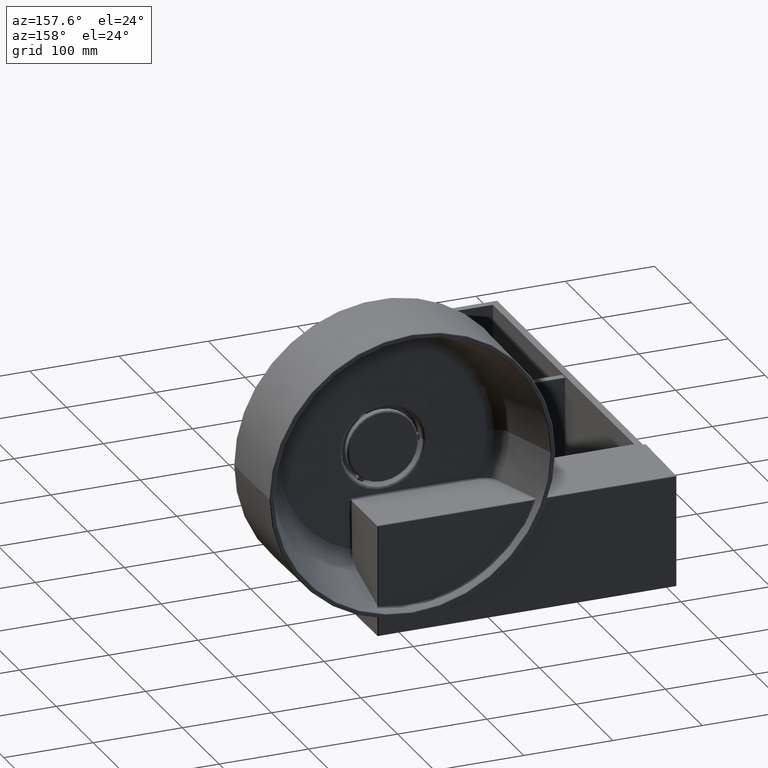
[diagram: clean part render]
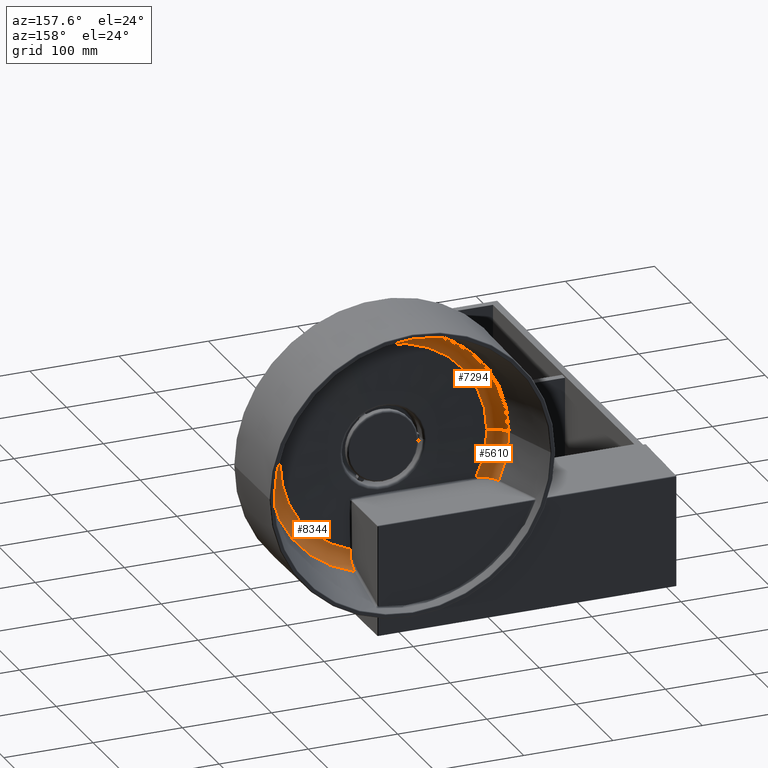
[diagram: same view with one multi-face feature highlighted, each face labeled with its STEP entity id]
A machine part, auxiliary view. The highlighted faces form ONE feature: a constant-radius fillet chain: 3 tangent blend faces with common blend radius 20 mm. The faces share edges in the B-rep.
Their STEP definitions:
[1] entity #5610 (Torus):
#266 = DIRECTION ( 'NONE',  ( 1.000000000000000000, 0.0000000000000000000, 0.0000000000000000000 ) ) ;
#281 = DIRECTION ( 'NONE',  ( -1.214623636765614367E-16, -1.000000000000000000, -0.0000000000000000000 ) ) ;
#293 = CARTESIAN_POINT ( 'NONE',  ( 298.7417837622144816, 415.8180891542289146, 55.99999999999999289 ) ) ;
#357 = CARTESIAN_POINT ( 'NONE',  ( 176.1294541464399401, 427.7524126341719466, 2.763341588403632532 ) ) ;
#409 = CARTESIAN_POINT ( 'NONE',  ( 187.0314929954897991, 417.5608795268813651, 3.222741473056470518 ) ) ;
#655 = B_SPLINE_CURVE_WITH_KNOTS ( 'NONE', 3,
 ( #1245, #4729, #8315, #357, #3880, #7415, #10837, #3019, #6535, #10034, #2163, #5654, #9236, #1297, #4781, #8368, #409, #3934, #7468, #10891, #3075, #6587, #10090, #2213 ),
 .UNSPECIFIED., .F., .F.,
 ( 4, 2, 2, 2, 2, 2, 2, 2, 2, 2, 2, 4 ),
 ( 0.0000000000000000000, 0.001652237577428946431, 0.003304475154857892862, 0.006608950309715825623, 0.009913425464573757950, 0.01156566304200278179, 0.01321790061943180390, 0.01652237577428968679, 0.01817461335171862563, 0.01982685092914756794, 0.02313132608400557746, 0.02643580123886359046 ),
 .UNSPECIFIED. ) ;
#916 = AXIS2_PLACEMENT_3D ( 'NONE', #8040, #8028, #8026 ) ;
#1032 = VERTEX_POINT ( 'NONE', #1972 ) ;
#1185 = EDGE_CURVE ( 'NONE', #5533, #8374, #4333, .T. ) ;
#1245 = CARTESIAN_POINT ( 'NONE',  ( 175.3166020602095898, 429.7999743637435586, 2.720587847853894736 ) ) ;
#1297 = CARTESIAN_POINT ( 'NONE',  ( 184.1085889854343236, 419.0062127903866553, 3.104941030092465581 ) ) ;
#1668 = ORIENTED_EDGE ( 'NONE', *, *, #5983, .F. ) ;
#1972 = CARTESIAN_POINT ( 'NONE',  ( 164.3078920627952755, 429.7999743637435586, 55.99999999999997868 ) ) ;
#2163 = CARTESIAN_POINT ( 'NONE',  ( 181.4581704003579432, 420.9079078304990276, 2.996788958571487971 ) ) ;
#2213 = CARTESIAN_POINT ( 'NONE',  ( 195.5372907242976055, 415.8180891542289146, 3.568252570373131594 ) ) ;
#2825 = ORIENTED_EDGE ( 'NONE', *, *, #10651, .F. ) ;
#3019 = CARTESIAN_POINT ( 'NONE',  ( 179.0907703744756816, 423.1866065122763416, 2.897787510938583111 ) ) ;
#3050 = ORIENTED_EDGE ( 'NONE', *, *, #1185, .T. ) ;
#3075 = CARTESIAN_POINT ( 'NONE',  ( 191.2042643516920180, 416.2688581369131953, 3.391088508899839482 ) ) ;
#3289 = TOROIDAL_SURFACE ( 'NONE', #9756, 115.3595526844546981, 20.00000000000001066 ) ;
#3467 = CIRCLE ( 'NONE', #8305, 20.00000000000001776 ) ;
#3821 = ORIENTED_EDGE ( 'NONE', *, *, #4420, .F. ) ;
#3880 = CARTESIAN_POINT ( 'NONE',  ( 176.3721066186695055, 427.2549202349674715, 2.775231594317320027 ) ) ;
#3934 = CARTESIAN_POINT ( 'NONE',  ( 188.0575009531934825, 417.1657154939548491, 3.264058239781951087 ) ) ;
#4119 = CARTESIAN_POINT ( 'NONE',  ( 175.3166020602095898, 429.7999743637435586, 2.720587847853894736 ) ) ;
#4333 = CIRCLE ( 'NONE', #10737, 115.7594727084466655 ) ;
#4381 = CARTESIAN_POINT ( 'NONE',  ( 195.5372907242976055, 415.8180891542289146, 3.568252570373131594 ) ) ;
#4420 = EDGE_CURVE ( 'NONE', #5533, #1032, #3467, .T. ) ;
#4729 = CARTESIAN_POINT ( 'NONE',  ( 175.4921378565561270, 429.2764348715413121, 2.730453737958565608 ) ) ;
#4781 = CARTESIAN_POINT ( 'NONE',  ( 185.0520997129291061, 418.4728595839821992, 3.143014741224871234 ) ) ;
#4897 = VERTEX_POINT ( 'NONE', #4119 ) ;
#5402 = EDGE_LOOP ( 'NONE', ( #3821, #3050, #2825, #1668 ) ) ;
#5533 = VERTEX_POINT ( 'NONE', #10749 ) ;
#5610 = ADVANCED_FACE ( 'NONE', ( #10298 ), #3289, .F. ) ;
#5654 = CARTESIAN_POINT ( 'NONE',  ( 182.3163998819578353, 420.2317363904226681, 3.032016760740713135 ) ) ;
#5865 = CIRCLE ( 'NONE', #916, 134.4338916994192061 ) ;
#5983 = EDGE_CURVE ( 'NONE', #1032, #4897, #5865, .T. ) ;
#6535 = CARTESIAN_POINT ( 'NONE',  ( 179.8277967536984931, 422.3858352248989831, 2.929044829487388757 ) ) ;
#6587 = CARTESIAN_POINT ( 'NONE',  ( 193.3500604205510740, 415.9328631186245957, 3.478397753901675049 ) ) ;
#7415 = CARTESIAN_POINT ( 'NONE',  ( 177.1575785356649249, 425.8049507147144368, 2.812549362414900944 ) ) ;
#7427 = DIRECTION ( 'NONE',  ( -1.000000000000000000, 0.0000000000000000000, 0.0000000000000000000 ) ) ;
#7430 = DIRECTION ( 'NONE',  ( 1.224646799147353207E-16, -1.487484948933726914E-32, -1.000000000000000000 ) ) ;
#7444 = CARTESIAN_POINT ( 'NONE',  ( 183.3822310777597977, 435.8140903538290445, 55.99999999999997868 ) ) ;
#7468 = CARTESIAN_POINT ( 'NONE',  ( 188.5778621707563616, 416.9869237594652418, 3.285020772085046392 ) ) ;
#8026 = DIRECTION ( 'NONE',  ( 1.000000000000000000, 0.0000000000000000000, 0.0000000000000000000 ) ) ;
#8028 = DIRECTION ( 'NONE',  ( -1.214623636765614367E-16, -1.000000000000000000, -0.0000000000000000000 ) ) ;
#8040 = CARTESIAN_POINT ( 'NONE',  ( 298.7417837622144816, 429.7999743637435586, 55.99999999999999289 ) ) ;
#8305 = AXIS2_PLACEMENT_3D ( 'NONE', #7444, #7430, #7427 ) ;
#8315 = CARTESIAN_POINT ( 'NONE',  ( 175.6899769035787813, 428.7622824566552708, 2.740976376629922218 ) ) ;
#8368 = CARTESIAN_POINT ( 'NONE',  ( 186.5289175220593165, 417.7759312811431300, 3.202510627869035620 ) ) ;
#8374 = VERTEX_POINT ( 'NONE', #4381 ) ;
#9236 = CARTESIAN_POINT ( 'NONE',  ( 182.7565159080938599, 419.9120729094040598, 3.049978320954236377 ) ) ;
#9756 = AXIS2_PLACEMENT_3D ( 'NONE', #10262, #10251, #10229 ) ;
#10034 = CARTESIAN_POINT ( 'NONE',  ( 181.0381824303476606, 421.2661959360152082, 2.979444510713694871 ) ) ;
#10090 = CARTESIAN_POINT ( 'NONE',  ( 194.4366812057667744, 415.8381251479012235, 3.522861068851670829 ) ) ;
#10229 = DIRECTION ( 'NONE',  ( 1.000000000000000000, -1.214623636765614367E-16, 0.0000000000000000000 ) ) ;
#10251 = DIRECTION ( 'NONE',  ( 1.214623636765614367E-16, 1.000000000000000000, 0.0000000000000000000 ) ) ;
#10262 = CARTESIAN_POINT ( 'NONE',  ( 298.7417837622144816, 435.8140903538290445, 55.99999999999999289 ) ) ;
#10298 = FACE_OUTER_BOUND ( 'NONE', #5402, .T. ) ;
#10651 = EDGE_CURVE ( 'NONE', #4897, #8374, #655, .T. ) ;
#10737 = AXIS2_PLACEMENT_3D ( 'NONE', #293, #281, #266 ) ;
#10749 = CARTESIAN_POINT ( 'NONE',  ( 182.9823110537678019, 415.8180891542289146, 55.99999999999997868 ) ) ;
#10837 = CARTESIAN_POINT ( 'NONE',  ( 177.7556927800960409, 424.8961887260571757, 2.839539842524467339 ) ) ;
#10891 = CARTESIAN_POINT ( 'NONE',  ( 190.1450857814810433, 416.5100978048951674, 3.348243151435842169 ) ) ;
[2] entity #7294 (Torus):
#86 = DIRECTION ( 'NONE',  ( 1.000000000000000000, 0.0000000000000000000, 0.0000000000000000000 ) ) ;
#100 = DIRECTION ( 'NONE',  ( -1.214623636765614367E-16, -1.000000000000000000, -0.0000000000000000000 ) ) ;
#217 = CARTESIAN_POINT ( 'NONE',  ( 298.7417837622144816, 415.8180891542289146, 55.99999999999999289 ) ) ;
#396 = AXIS2_PLACEMENT_3D ( 'NONE', #2119, #2105, #2061 ) ;
#797 = CIRCLE ( 'NONE', #7252, 20.00000000000001776 ) ;
#1032 = VERTEX_POINT ( 'NONE', #1972 ) ;
#1323 = VERTEX_POINT ( 'NONE', #9547 ) ;
#1972 = CARTESIAN_POINT ( 'NONE',  ( 164.3078920627952755, 429.7999743637435586, 55.99999999999997868 ) ) ;
#2061 = DIRECTION ( 'NONE',  ( 1.000000000000000000, -1.214623636765614367E-16, 0.0000000000000000000 ) ) ;
#2105 = DIRECTION ( 'NONE',  ( 1.214623636765614367E-16, 1.000000000000000000, 0.0000000000000000000 ) ) ;
#2119 = CARTESIAN_POINT ( 'NONE',  ( 298.7417837622144816, 435.8140903538290445, 55.99999999999999289 ) ) ;
#2210 = FACE_OUTER_BOUND ( 'NONE', #4292, .T. ) ;
#2299 = ORIENTED_EDGE ( 'NONE', *, *, #4420, .T. ) ;
#2467 = ORIENTED_EDGE ( 'NONE', *, *, #6484, .F. ) ;
#2515 = DIRECTION ( 'NONE',  ( 1.000000000000000000, 0.0000000000000000000, 0.0000000000000000000 ) ) ;
#2516 = DIRECTION ( 'NONE',  ( -1.214623636765614367E-16, -1.000000000000000000, -0.0000000000000000000 ) ) ;
#2531 = CARTESIAN_POINT ( 'NONE',  ( 298.7417837622144816, 429.7999743637435586, 55.99999999999999289 ) ) ;
#2582 = CIRCLE ( 'NONE', #9090, 115.7594727084466655 ) ;
#2763 = CIRCLE ( 'NONE', #9256, 134.4338916994192061 ) ;
#3094 = ORIENTED_EDGE ( 'NONE', *, *, #8572, .F. ) ;
#3224 = DIRECTION ( 'NONE',  ( 1.000000000000000000, 0.0000000000000000000, 0.0000000000000000000 ) ) ;
#3238 = DIRECTION ( 'NONE',  ( -0.0000000000000000000, 0.0000000000000000000, 1.000000000000000000 ) ) ;
#3250 = CARTESIAN_POINT ( 'NONE',  ( 414.1013364466691655, 435.8140903538290445, 55.99999999999999289 ) ) ;
#3467 = CIRCLE ( 'NONE', #8305, 20.00000000000001776 ) ;
#4292 = EDGE_LOOP ( 'NONE', ( #7353, #2299, #2467, #3094 ) ) ;
#4420 = EDGE_CURVE ( 'NONE', #5533, #1032, #3467, .T. ) ;
#5362 = TOROIDAL_SURFACE ( 'NONE', #396, 115.3595526844546981, 20.00000000000001066 ) ;
#5533 = VERTEX_POINT ( 'NONE', #10749 ) ;
#6484 = EDGE_CURVE ( 'NONE', #6827, #1032, #2763, .T. ) ;
#6677 = EDGE_CURVE ( 'NONE', #1323, #5533, #2582, .T. ) ;
#6827 = VERTEX_POINT ( 'NONE', #9814 ) ;
#7252 = AXIS2_PLACEMENT_3D ( 'NONE', #3250, #3238, #3224 ) ;
#7294 = ADVANCED_FACE ( 'NONE', ( #2210 ), #5362, .F. ) ;
#7353 = ORIENTED_EDGE ( 'NONE', *, *, #6677, .T. ) ;
#7427 = DIRECTION ( 'NONE',  ( -1.000000000000000000, 0.0000000000000000000, 0.0000000000000000000 ) ) ;
#7430 = DIRECTION ( 'NONE',  ( 1.224646799147353207E-16, -1.487484948933726914E-32, -1.000000000000000000 ) ) ;
#7444 = CARTESIAN_POINT ( 'NONE',  ( 183.3822310777597977, 435.8140903538290445, 55.99999999999997868 ) ) ;
#8305 = AXIS2_PLACEMENT_3D ( 'NONE', #7444, #7430, #7427 ) ;
#8572 = EDGE_CURVE ( 'NONE', #1323, #6827, #797, .T. ) ;
#9090 = AXIS2_PLACEMENT_3D ( 'NONE', #217, #100, #86 ) ;
#9256 = AXIS2_PLACEMENT_3D ( 'NONE', #2531, #2516, #2515 ) ;
#9547 = CARTESIAN_POINT ( 'NONE',  ( 414.5012564706611329, 415.8180891542289146, 55.99999999999999289 ) ) ;
#9814 = CARTESIAN_POINT ( 'NONE',  ( 433.1756754616337162, 429.7999743637435586, 55.99999999999999289 ) ) ;
#10749 = CARTESIAN_POINT ( 'NONE',  ( 182.9823110537678019, 415.8180891542289146, 55.99999999999997868 ) ) ;
[3] entity #8344 (Torus):
#155 = CIRCLE ( 'NONE', #6599, 115.7594727084466655 ) ;
#493 = DIRECTION ( 'NONE',  ( 1.000000000000000000, 0.0000000000000000000, 0.0000000000000000000 ) ) ;
#506 = DIRECTION ( 'NONE',  ( -1.214623636765614367E-16, -1.000000000000000000, -0.0000000000000000000 ) ) ;
#535 = CARTESIAN_POINT ( 'NONE',  ( 298.7417837622144816, 415.8180891542289146, 55.99999999999999289 ) ) ;
#797 = CIRCLE ( 'NONE', #7252, 20.00000000000001776 ) ;
#1323 = VERTEX_POINT ( 'NONE', #9547 ) ;
#1459 = EDGE_LOOP ( 'NONE', ( #3300, #4015, #4401, #4522 ) ) ;
#1993 = EDGE_CURVE ( 'NONE', #7111, #6827, #10896, .T. ) ;
#2026 = VERTEX_POINT ( 'NONE', #9687 ) ;
#2445 = AXIS2_PLACEMENT_3D ( 'NONE', #4591, #4579, #4564 ) ;
#3224 = DIRECTION ( 'NONE',  ( 1.000000000000000000, 0.0000000000000000000, 0.0000000000000000000 ) ) ;
#3238 = DIRECTION ( 'NONE',  ( -0.0000000000000000000, 0.0000000000000000000, 1.000000000000000000 ) ) ;
#3250 = CARTESIAN_POINT ( 'NONE',  ( 414.1013364466691655, 435.8140903538290445, 55.99999999999999289 ) ) ;
#3300 = ORIENTED_EDGE ( 'NONE', *, *, #5269, .T. ) ;
#4015 = ORIENTED_EDGE ( 'NONE', *, *, #8572, .T. ) ;
#4070 = EDGE_CURVE ( 'NONE', #2026, #7111, #6831, .T. ) ;
#4401 = ORIENTED_EDGE ( 'NONE', *, *, #1993, .F. ) ;
#4511 = AXIS2_PLACEMENT_3D ( 'NONE', #10119, #10069, #10016 ) ;
#4522 = ORIENTED_EDGE ( 'NONE', *, *, #4070, .F. ) ;
#4564 = DIRECTION ( 'NONE',  ( 1.000000000000000000, -1.214623636765614367E-16, 0.0000000000000000000 ) ) ;
#4579 = DIRECTION ( 'NONE',  ( 1.214623636765614367E-16, 1.000000000000000000, 0.0000000000000000000 ) ) ;
#4591 = CARTESIAN_POINT ( 'NONE',  ( 298.7417837622144816, 435.8140903538290445, 55.99999999999999289 ) ) ;
#4618 = FACE_OUTER_BOUND ( 'NONE', #1459, .T. ) ;
#5269 = EDGE_CURVE ( 'NONE', #2026, #1323, #155, .T. ) ;
#6599 = AXIS2_PLACEMENT_3D ( 'NONE', #535, #506, #493 ) ;
#6827 = VERTEX_POINT ( 'NONE', #9814 ) ;
#6831 = B_SPLINE_CURVE_WITH_KNOTS ( 'NONE', 3,
 ( #10711, #10700, #7603, #10688, #10685, #10659, #10643, #10639, #10629, #10626, #10605, #10596, #10592, #10582, #10579, #10555, #10541, #10528, #10525, #10499, #10483, #10479, #10466, #10463, #10443, #10428 ),
 .UNSPECIFIED., .F., .F.,
 ( 4, 2, 2, 2, 2, 2, 2, 2, 2, 2, 2, 2, 4 ),
 ( 0.0000000000000000000, 0.003193850350138320929, 0.004790775525207470985, 0.006387700700276621908, 0.009581551050414926357, 0.01117847622548408942, 0.01277540140055325249, 0.01596925175069158209, 0.01756617692576078679, 0.01916310210082999496, 0.02235695245096824824, 0.02395387762603738008, 0.02555080280110650498 ),
 .UNSPECIFIED. ) ;
#7111 = VERTEX_POINT ( 'NONE', #7173 ) ;
#7173 = CARTESIAN_POINT ( 'NONE',  ( 336.7577284315450470, 429.7999743637435586, -72.94673004132201299 ) ) ;
#7252 = AXIS2_PLACEMENT_3D ( 'NONE', #3250, #3238, #3224 ) ;
#7433 = TOROIDAL_SURFACE ( 'NONE', #2445, 115.3595526844546981, 20.00000000000001066 ) ;
#7603 = CARTESIAN_POINT ( 'NONE',  ( 336.4054398612260002, 415.9371723381442507, -55.61570814807956253 ) ) ;
#8344 = ADVANCED_FACE ( 'NONE', ( #4618 ), #7433, .F. ) ;
#8572 = EDGE_CURVE ( 'NONE', #1323, #6827, #797, .T. ) ;
#9547 = CARTESIAN_POINT ( 'NONE',  ( 414.5012564706611329, 415.8180891542289146, 55.99999999999999289 ) ) ;
#9687 = CARTESIAN_POINT ( 'NONE',  ( 336.3411398269514621, 415.8180891542289146, -53.48307606774093870 ) ) ;
#9814 = CARTESIAN_POINT ( 'NONE',  ( 433.1756754616337162, 429.7999743637435586, 55.99999999999999289 ) ) ;
#10016 = DIRECTION ( 'NONE',  ( 1.000000000000000000, 0.0000000000000000000, 0.0000000000000000000 ) ) ;
#10069 = DIRECTION ( 'NONE',  ( -1.214623636765614367E-16, -1.000000000000000000, -0.0000000000000000000 ) ) ;
#10119 = CARTESIAN_POINT ( 'NONE',  ( 298.7417837622144816, 429.7999743637435586, 55.99999999999999289 ) ) ;
#10428 = CARTESIAN_POINT ( 'NONE',  ( 336.7577284315450470, 429.7999743637435586, -72.94673004132201299 ) ) ;
#10443 = CARTESIAN_POINT ( 'NONE',  ( 336.7578334710941590, 429.2900730842980579, -72.77908640453480871 ) ) ;
#10463 = CARTESIAN_POINT ( 'NONE',  ( 336.7573667187468800, 428.7867929302139487, -72.59020212144508832 ) ) ;
#10466 = CARTESIAN_POINT ( 'NONE',  ( 336.7553026810312531, 427.8035791151104377, -72.17479667689484302 ) ) ;
#10479 = CARTESIAN_POINT ( 'NONE',  ( 336.7537072445033459, 427.3225849493927626, -71.94799289852110746 ) ) ;
#10483 = CARTESIAN_POINT ( 'NONE',  ( 336.7472298486401314, 425.9107340267863151, -71.21155062044695683 ) ) ;
#10499 = CARTESIAN_POINT ( 'NONE',  ( 336.7406693161465228, 425.0108186908955190, -70.64622339662805928 ) ) ;
#10525 = CARTESIAN_POINT ( 'NONE',  ( 336.7272391191665406, 423.7236383471701515, -69.68539945267929170 ) ) ;
#10528 = CARTESIAN_POINT ( 'NONE',  ( 336.7221749465427365, 423.3069693415113761, -69.34743381819804142 ) ) ;
#10541 = CARTESIAN_POINT ( 'NONE',  ( 336.7109876993974922, 422.5075923273349190, -68.64503913154037207 ) ) ;
#10555 = CARTESIAN_POINT ( 'NONE',  ( 336.7048492252999381, 422.1233501574091633, -68.27948617087606920 ) ) ;
#10579 = CARTESIAN_POINT ( 'NONE',  ( 336.6847824159353308, 421.0159054492675637, -67.14074397559603824 ) ) ;
#10582 = CARTESIAN_POINT ( 'NONE',  ( 336.6692133908916276, 420.3377203152452921, -66.32571713023217796 ) ) ;
#10592 = CARTESIAN_POINT ( 'NONE',  ( 336.6423172235337802, 419.4113318809821180, -65.01871171213643663 ) ) ;
#10596 = CARTESIAN_POINT ( 'NONE',  ( 336.6327405649487332, 419.1175594323638052, -64.56820577190013921 ) ) ;
#10605 = CARTESIAN_POINT ( 'NONE',  ( 336.6126838547655211, 418.5700107260579443, -63.65391770901653246 ) ) ;
#10626 = CARTESIAN_POINT ( 'NONE',  ( 336.6021686317322406, 418.3148904721002168, -63.18837015507358501 ) ) ;
#10629 = CARTESIAN_POINT ( 'NONE',  ( 336.5691451711269337, 417.6040359391285506, -61.76717419595544811 ) ) ;
#10639 = CARTESIAN_POINT ( 'NONE',  ( 336.5451668303221027, 417.2025022320153198, -60.78711019645996316 ) ) ;
#10643 = CARTESIAN_POINT ( 'NONE',  ( 336.5060493016000578, 416.7087395076179064, -59.26812637334433731 ) ) ;
#10659 = CARTESIAN_POINT ( 'NONE',  ( 336.4924325613998235, 416.5619075946451630, -58.75176391351980243 ) ) ;
#10685 = CARTESIAN_POINT ( 'NONE',  ( 336.4643753723755140, 416.3079659656896183, -57.71285507409393745 ) ) ;
#10688 = CARTESIAN_POINT ( 'NONE',  ( 336.4499460719369495, 416.2007450512357991, -57.19061581048246268 ) ) ;
#10700 = CARTESIAN_POINT ( 'NONE',  ( 336.3741494160462935, 415.8385777370602341, -54.55489686575035790 ) ) ;
#10711 = CARTESIAN_POINT ( 'NONE',  ( 336.3411398269514621, 415.8180891542289146, -53.48307606774093870 ) ) ;
#10896 = CIRCLE ( 'NONE', #4511, 134.4338916994192061 ) ;